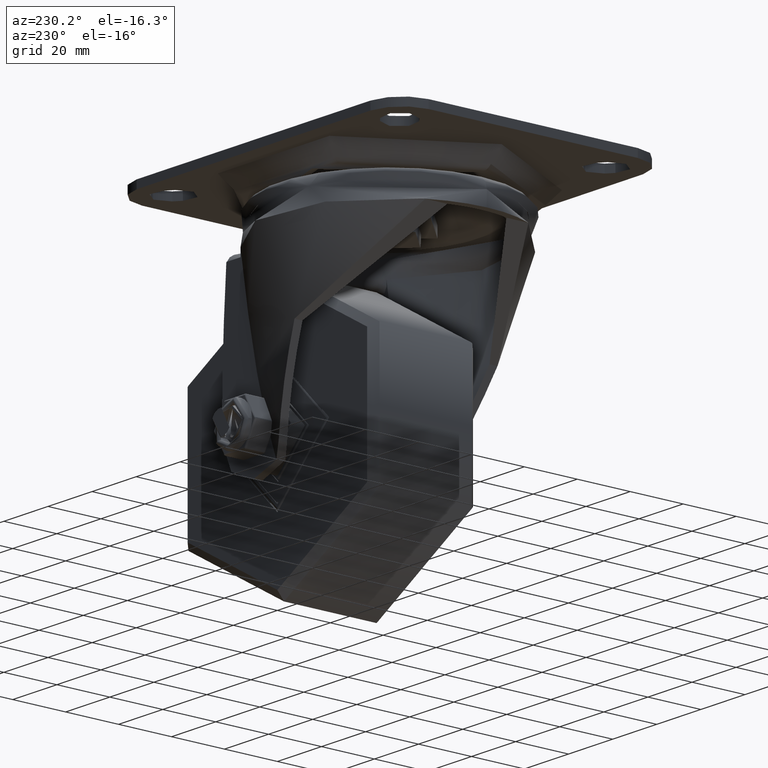
[diagram: clean part render]
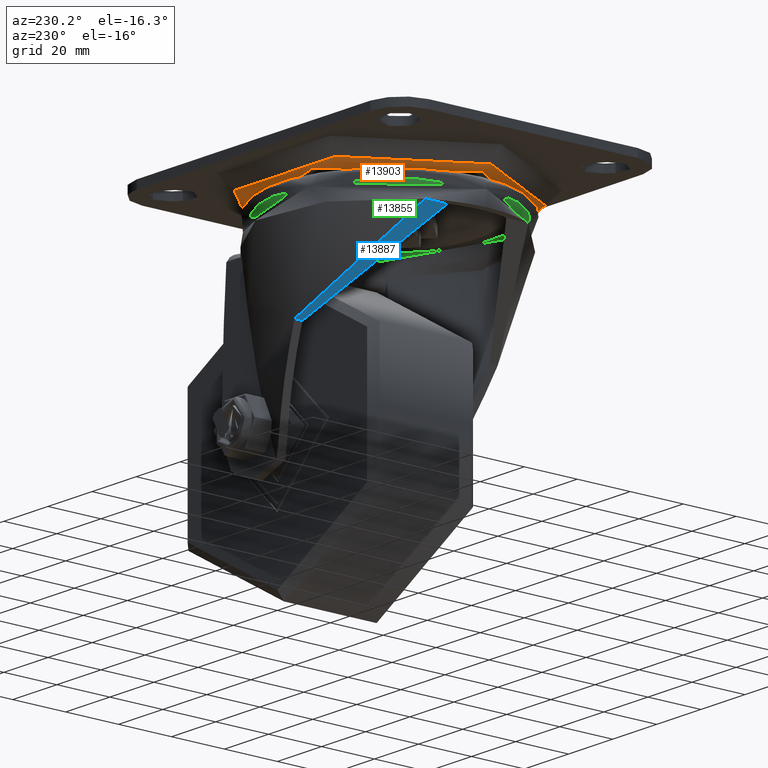
[diagram: same view with three faces highlighted in distinct colors, each labeled with its STEP entity id]
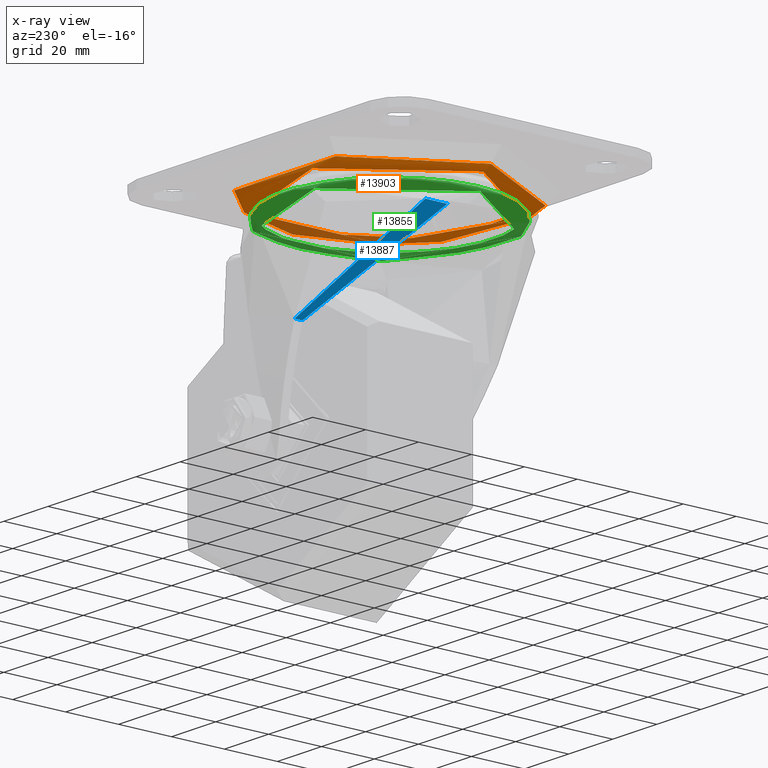
[diagram: x-ray of the same camera — body ghosted, the three highlighted faces saturated]
A machine part, auxiliary view with three faces highlighted in distinct colors.
The next image is the same camera in x-ray (body ghosted, the three faces saturated) — at least one of them is partly hidden behind the body in this view.
Their STEP definitions:

[orange] entity #13903 — the highlighted toroidal blend (fillet) surface has major radius 42.2887 mm and minor (blend) radius 5 mm.
#262=TOROIDAL_SURFACE('',#15036,42.2887260695938,5.);
#2262=FACE_OUTER_BOUND('',#3111,.T.);
#3111=EDGE_LOOP('',(#12206,#12207,#12208,#12209,#12210));
#5743=CIRCLE('',#15037,42.2887260695938);
#5744=CIRCLE('',#15038,5.);
#5745=CIRCLE('',#15039,45.8493783442427);
#5746=CIRCLE('',#15040,45.8493783442427);
#6872=VERTEX_POINT('',#25608);
#6873=VERTEX_POINT('',#25610);
#6874=VERTEX_POINT('',#25612);
#8703=EDGE_CURVE('',#6872,#6872,#5743,.T.);
#8704=EDGE_CURVE('',#6872,#6873,#5744,.T.);
#8705=EDGE_CURVE('',#6874,#6873,#5745,.T.);
#8706=EDGE_CURVE('',#6873,#6874,#5746,.T.);
#12206=ORIENTED_EDGE('',*,*,#8703,.T.);
#12207=ORIENTED_EDGE('',*,*,#8704,.T.);
#12208=ORIENTED_EDGE('',*,*,#8705,.F.);
#12209=ORIENTED_EDGE('',*,*,#8706,.F.);
#12210=ORIENTED_EDGE('',*,*,#8704,.F.);
#13903=ADVANCED_FACE('',(#2262),#262,.T.);
#15036=AXIS2_PLACEMENT_3D('',#25607,#17628,#17629);
#15037=AXIS2_PLACEMENT_3D('',#25609,#17630,#17631);
#15038=AXIS2_PLACEMENT_3D('',#25611,#17632,#17633);
#15039=AXIS2_PLACEMENT_3D('',#25613,#17634,#17635);
#15040=AXIS2_PLACEMENT_3D('',#25614,#17636,#17637);
#17628=DIRECTION('center_axis',(0.,0.,-1.));
#17629=DIRECTION('ref_axis',(-1.,0.,0.));
#17630=DIRECTION('center_axis',(0.,0.,1.));
#17631=DIRECTION('ref_axis',(-1.,0.,0.));
#17632=DIRECTION('center_axis',(0.,-1.,0.));
#17633=DIRECTION('ref_axis',(1.,0.,0.));
#17634=DIRECTION('center_axis',(0.,0.,1.));
#17635=DIRECTION('ref_axis',(-1.,0.,0.));
#17636=DIRECTION('center_axis',(0.,0.,1.));
#17637=DIRECTION('ref_axis',(-1.,0.,0.));
#25607=CARTESIAN_POINT('Origin',(-81.096693940411,195.278189306354,-4.40000000000001));
#25608=CARTESIAN_POINT('',(-38.8079678708172,195.278189306354,-9.40000000000002));
#25609=CARTESIAN_POINT('Origin',(-81.096693940411,195.278189306354,-9.40000000000002));
#25610=CARTESIAN_POINT('',(-35.2473155961683,195.278189306354,-7.91023580105912));
#25611=CARTESIAN_POINT('Origin',(-38.8079678708172,195.278189306354,-4.40000000000001));
#25612=CARTESIAN_POINT('',(-126.946072288398,195.278189306354,-7.91023580475027));
#25613=CARTESIAN_POINT('Origin',(-81.096693940411,195.278189306354,-7.91023580105912));
#25614=CARTESIAN_POINT('Origin',(-81.096693940411,195.278189306354,-7.91023580105912));

[blue] entity #13887 — the highlighted cylindrical surface (partial cylindrical patch) has radius 64.3432 mm, axis along (-0, -1, 0).
#683=B_SPLINE_CURVE_WITH_KNOTS('',3,(#25328,#25329,#25330,#25331,#25332,
#25333,#25334,#25335,#25336,#25337,#25338,#25339),.UNSPECIFIED.,.F.,.F.,
(4,2,2,2,2,4),(-6.01398942125182,-4.33822029419584,-3.0556761489014,-1.84212980229183,
-0.914863977701292,-9.99999994810707E-7),.UNSPECIFIED.);
#684=B_SPLINE_CURVE_WITH_KNOTS('',3,(#25358,#25359,#25360,#25361,#25362,
#25363,#25364,#25365,#25366,#25367,#25368,#25369),.UNSPECIFIED.,.F.,.F.,
(4,2,2,2,2,4),(-5.69645276712628,-4.07057956969391,-2.86193372880106,-1.56265490139362,
-0.773530520476598,-9.99999961948106E-7),.UNSPECIFIED.);
#1622=CYLINDRICAL_SURFACE('',#14997,64.3431651660295);
#2246=FACE_OUTER_BOUND('',#3095,.T.);
#3095=EDGE_LOOP('',(#12142,#12143,#12144,#12145));
#4113=LINE('',#25046,#5135);
#4134=LINE('',#25278,#5156);
#5135=VECTOR('',#17435,1.);
#5156=VECTOR('',#17522,1.);
#6795=VERTEX_POINT('',#24924);
#6810=VERTEX_POINT('',#24973);
#6832=VERTEX_POINT('',#25275);
#6833=VERTEX_POINT('',#25277);
#8613=EDGE_CURVE('',#6795,#6810,#4113,.T.);
#8653=EDGE_CURVE('',#6832,#6833,#4134,.T.);
#8659=EDGE_CURVE('',#6832,#6810,#683,.T.);
#8660=EDGE_CURVE('',#6833,#6795,#684,.T.);
#12142=ORIENTED_EDGE('',*,*,#8660,.F.);
#12143=ORIENTED_EDGE('',*,*,#8653,.F.);
#12144=ORIENTED_EDGE('',*,*,#8659,.T.);
#12145=ORIENTED_EDGE('',*,*,#8613,.F.);
#13887=ADVANCED_FACE('',(#2246),#1622,.F.);
#14997=AXIS2_PLACEMENT_3D('',#25370,#17534,#17535);
#17435=DIRECTION('',(0.,1.,0.));
#17522=DIRECTION('',(0.,-1.,0.));
#17534=DIRECTION('center_axis',(0.,1.,0.));
#17535=DIRECTION('ref_axis',(0.,0.,1.));
#24924=CARTESIAN_POINT('',(-41.6427472721715,175.800353381907,-20.6312605821945));
#24973=CARTESIAN_POINT('',(-41.6427472721495,184.12533799837,-20.6312605821945));
#25046=CARTESIAN_POINT('',(-41.6427472721601,179.962845690138,-20.6312605821945));
#25275=CARTESIAN_POINT('',(-78.3045745732449,159.938981348852,-52.1953990439471));
#25277=CARTESIAN_POINT('',(-78.3045745732449,156.932478024199,-52.1953990439471));
#25278=CARTESIAN_POINT('',(-78.3045745732448,314.426420405387,-52.1953990439471));
#25328=CARTESIAN_POINT('Ctrl Pts',(-78.3045745732449,159.938981348852,-52.1953990439471));
#25329=CARTESIAN_POINT('Ctrl Pts',(-75.5073850977965,159.169843043886,-46.7505630740229));
#25330=CARTESIAN_POINT('Ctrl Pts',(-72.0700764192111,158.847622210661,-41.9690010086106));
#25331=CARTESIAN_POINT('Ctrl Pts',(-65.3720426557401,159.777675336165,-34.738009721858));
#25332=CARTESIAN_POINT('Ctrl Pts',(-62.2382633478945,160.678608166931,-31.9886037387486));
#25333=CARTESIAN_POINT('Ctrl Pts',(-56.0208245192941,163.844171407799,-27.4436282224854));
#25334=CARTESIAN_POINT('Ctrl Pts',(-53.0922086674425,165.964069269962,-25.7084559101744));
#25335=CARTESIAN_POINT('Ctrl Pts',(-48.4262833053604,170.793253938234,-23.3142014298318));
#25336=CARTESIAN_POINT('Ctrl Pts',(-46.6340707523642,173.183302388633,-22.5277670110158));
#25337=CARTESIAN_POINT('Ctrl Pts',(-43.6555189495865,178.41126168318,-21.3267177859355));
#25338=CARTESIAN_POINT('Ctrl Pts',(-42.4817626907018,181.207182417067,-20.9143526381421));
#25339=CARTESIAN_POINT('Ctrl Pts',(-41.6427472721496,184.12533799837,-20.6312605821909));
#25358=CARTESIAN_POINT('Ctrl Pts',(-78.3045745732448,156.932478024199,-52.1953990439471));
#25359=CARTESIAN_POINT('Ctrl Pts',(-75.8249249374339,156.239064385926,-47.3686664795722));
#25360=CARTESIAN_POINT('Ctrl Pts',(-72.7237217370952,155.836364700218,-42.846358118203));
#25361=CARTESIAN_POINT('Ctrl Pts',(-66.4238447928971,156.37345355541,-35.7765449234089));
#25362=CARTESIAN_POINT('Ctrl Pts',(-63.5006369862555,156.996251389572,-33.0723149740028));
#25363=CARTESIAN_POINT('Ctrl Pts',(-57.1798259989006,159.49143884973,-28.1801405167611));
#25364=CARTESIAN_POINT('Ctrl Pts',(-53.91136402183,161.400109555868,-26.1580674860569));
#25365=CARTESIAN_POINT('Ctrl Pts',(-48.9934927219599,165.601773174362,-23.5903909020415));
#25366=CARTESIAN_POINT('Ctrl Pts',(-47.2603211781996,167.41061260659,-22.8004848671092));
#25367=CARTESIAN_POINT('Ctrl Pts',(-44.1568218778773,171.389497026071,-21.5151011863521));
#25368=CARTESIAN_POINT('Ctrl Pts',(-42.7982466518265,173.528540872553,-21.0211374400058));
#25369=CARTESIAN_POINT('Ctrl Pts',(-41.6427472721711,175.800353381907,-20.6312605821982));
#25370=CARTESIAN_POINT('Origin',(-21.0721120013036,314.426420405387,-81.5975780709222));

[green] entity #13855 — the highlighted toroidal blend (fillet) surface has major radius 39 mm and minor (blend) radius 2 mm.
#257=TOROIDAL_SURFACE('',#14939,39.0000000000001,2.);
#2214=FACE_OUTER_BOUND('',#3055,.T.);
#3055=EDGE_LOOP('',(#11983,#11984,#11985,#11986));
#5696=CIRCLE('',#14940,39.0000000000001);
#5697=CIRCLE('',#14941,2.);
#5698=CIRCLE('',#14942,41.0000000000001);
#6796=VERTEX_POINT('',#24928);
#6797=VERTEX_POINT('',#24930);
#8589=EDGE_CURVE('',#6796,#6796,#5696,.T.);
#8590=EDGE_CURVE('',#6796,#6797,#5697,.T.);
#8591=EDGE_CURVE('',#6797,#6797,#5698,.T.);
#11983=ORIENTED_EDGE('',*,*,#8589,.F.);
#11984=ORIENTED_EDGE('',*,*,#8590,.T.);
#11985=ORIENTED_EDGE('',*,*,#8591,.T.);
#11986=ORIENTED_EDGE('',*,*,#8590,.F.);
#13855=ADVANCED_FACE('',(#2214),#257,.F.);
#14939=AXIS2_PLACEMENT_3D('',#24927,#17389,#17390);
#14940=AXIS2_PLACEMENT_3D('',#24929,#17391,#17392);
#14941=AXIS2_PLACEMENT_3D('',#24931,#17393,#17394);
#14942=AXIS2_PLACEMENT_3D('',#24932,#17395,#17396);
#17389=DIRECTION('center_axis',(0.,0.,-1.));
#17390=DIRECTION('ref_axis',(-1.,0.,0.));
#17391=DIRECTION('center_axis',(0.,0.,-1.));
#17392=DIRECTION('ref_axis',(-1.,0.,0.));
#17393=DIRECTION('center_axis',(0.,1.,0.));
#17394=DIRECTION('ref_axis',(1.,0.,0.));
#17395=DIRECTION('center_axis',(0.,0.,-1.));
#17396=DIRECTION('ref_axis',(-1.,0.,0.));
#24927=CARTESIAN_POINT('Origin',(-81.096693940411,195.278189306354,-15.1312605821944));
#24928=CARTESIAN_POINT('',(-42.0966939404109,195.278189306354,-13.1312605821944));
#24929=CARTESIAN_POINT('Origin',(-81.096693940411,195.278189306354,-13.1312605821944));
#24930=CARTESIAN_POINT('',(-40.0966939404109,195.278189306354,-15.1312605821944));
#24931=CARTESIAN_POINT('Origin',(-42.0966939404109,195.278189306354,-15.1312605821944));
#24932=CARTESIAN_POINT('Origin',(-81.096693940411,195.278189306354,-15.1312605821944));